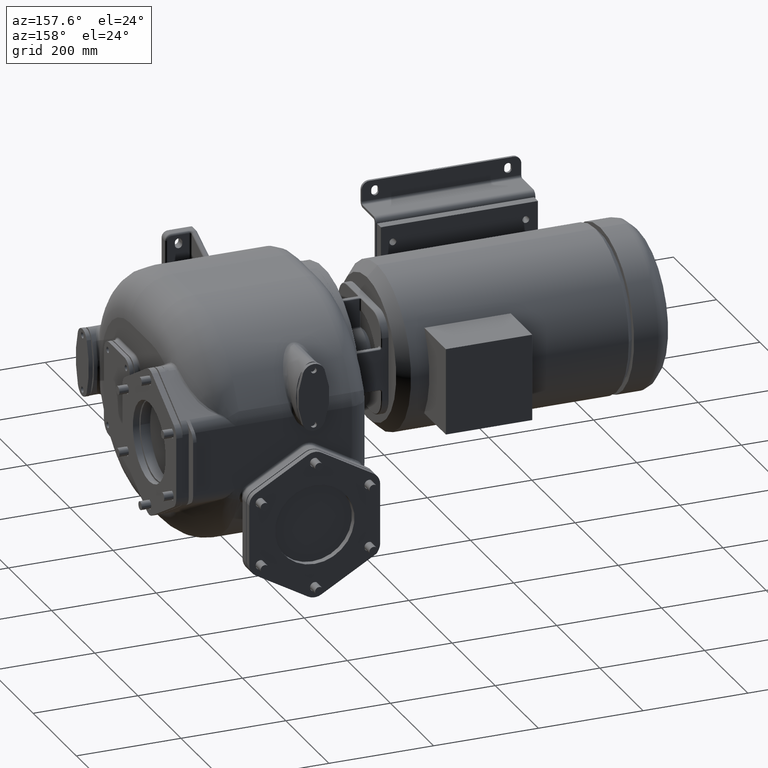
[diagram: clean part render]
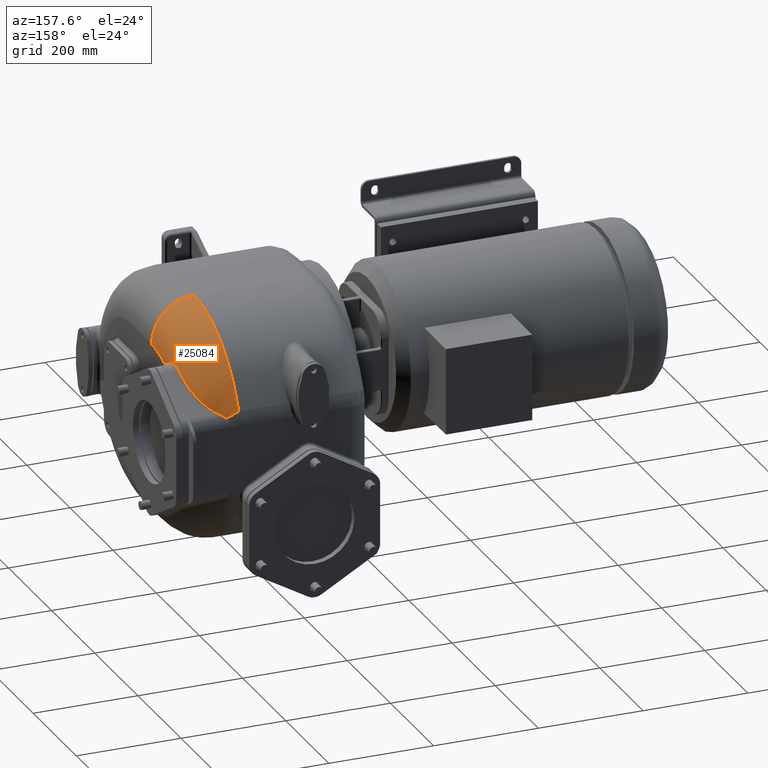
[diagram: same view with one face highlighted and labeled with its STEP entity id]
A machine part, auxiliary view. The second image highlights one B-rep face of the part: STEP entity #25084.
In plain terms, the highlighted toroidal blend (fillet) surface has major radius 144 mm and minor (blend) radius 81 mm.
Its self-contained STEP definition (entity closure, byte-faithful):
#6415=CARTESIAN_POINT('',(9.4E1,3.17E2,1.18E2));
#6416=DIRECTION('',(0.E0,-1.E0,0.E0));
#6417=DIRECTION('',(1.E0,0.E0,0.E0));
#6418=AXIS2_PLACEMENT_3D('',#6415,#6416,#6417);
#6447=CARTESIAN_POINT('',(1.75E2,3.17E2,-2.6E1));
#6448=DIRECTION('',(1.E0,0.E0,0.E0));
#6449=DIRECTION('',(0.E0,4.233478865562E-1,9.059671997089E-1));
#6450=AXIS2_PLACEMENT_3D('',#6447,#6448,#6449);
#6536=CARTESIAN_POINT('',(1.733602443618E2,3.951095980304E2,1.138856239345E2));
#6537=CARTESIAN_POINT('',(1.734661831703E2,3.945748210790E2,1.135904168496E2));
#6538=CARTESIAN_POINT('',(1.736684373138E2,3.934981751461E2,1.129963078726E2));
#6539=CARTESIAN_POINT('',(1.739421932198E2,3.918631475769E2,1.120947629351E2));
#6540=CARTESIAN_POINT('',(1.741859853625E2,3.902069024249E2,1.111822324884E2));
#6541=CARTESIAN_POINT('',(1.743992934731E2,3.885289490650E2,1.102584862345E2));
#6542=CARTESIAN_POINT('',(1.745815907162E2,3.868285633995E2,1.093231680484E2));
#6543=CARTESIAN_POINT('',(1.747322930105E2,3.851050428096E2,1.083759320387E2));
#6544=CARTESIAN_POINT('',(1.748507681541E2,3.833577111877E2,1.074164505472E2));
#6545=CARTESIAN_POINT('',(1.749363377425E2,3.815858736748E2,1.064443904438E2));
#6546=CARTESIAN_POINT('',(1.749882841836E2,3.797890831383E2,1.054595521580E2));
#6547=CARTESIAN_POINT('',(1.749999999614E2,3.785738109838E2,1.047940818377E2));
#6548=CARTESIAN_POINT('',(1.75E2,3.779620956640E2,1.044592767582E2));
#6550=CARTESIAN_POINT('',(9.4E1,5.250322073841E2,5.971814680035E1));
#6551=CARTESIAN_POINT('',(9.451538624218E1,5.251048634583E2,5.954179212118E1));
#6552=CARTESIAN_POINT('',(9.554646692356E1,5.252401754354E2,5.918632790116E1));
#6553=CARTESIAN_POINT('',(9.709182938497E1,5.254147461811E2,5.864074179071E1));
#6554=CARTESIAN_POINT('',(9.863597298219E1,5.255599646151E2,5.808526365770E1));
#6555=CARTESIAN_POINT('',(1.001779446747E2,5.256759942519E2,5.751965589582E1));
#6556=CARTESIAN_POINT('',(1.017171040288E2,5.257627269187E2,5.694442303393E1));
#6557=CARTESIAN_POINT('',(1.032525532321E2,5.258201765968E2,5.635987863800E1));
#6558=CARTESIAN_POINT('',(1.047830884059E2,5.258481819746E2,5.576700859384E1));
#6559=CARTESIAN_POINT('',(1.063075976812E2,5.258466444557E2,5.516680749646E1));
#6560=CARTESIAN_POINT('',(1.078258321734E2,5.258155406206E2,5.455983848298E1));
#6561=CARTESIAN_POINT('',(1.093376667183E2,5.257546956298E2,5.394694761771E1));
#6562=CARTESIAN_POINT('',(1.108423900968E2,5.256645611190E2,5.332766935970E1));
#6563=CARTESIAN_POINT('',(1.123396533526E2,5.255450973468E2,5.270258337734E1));
#6564=CARTESIAN_POINT('',(1.138290756521E2,5.253964296493E2,5.207213301583E1));
#6565=CARTESIAN_POINT('',(1.148168093524E2,5.252773112861E2,5.164931850497E1));
#6566=CARTESIAN_POINT('',(1.153092020854E2,5.252130023591E2,5.143707029860E1));
#6568=CARTESIAN_POINT('',(1.153092020854E2,5.252130023591E2,5.143707029860E1));
#6569=CARTESIAN_POINT('',(1.155752783039E2,5.251784614331E2,5.132191762786E1));
#6570=CARTESIAN_POINT('',(1.161045555584E2,5.251119110537E2,5.107849512312E1));
#6571=CARTESIAN_POINT('',(1.169050818362E2,5.249989935738E2,5.071528949109E1));
#6572=CARTESIAN_POINT('',(1.174385900906E2,5.249224782409E2,5.046131345931E1));
#6573=CARTESIAN_POINT('',(1.177053320788E2,5.248829311947E2,5.033237396614E1));
#6575=CARTESIAN_POINT('',(1.177053320788E2,5.248829311947E2,5.033237396614E1));
#6576=CARTESIAN_POINT('',(1.178732428866E2,5.247701163780E2,5.049051828112E1));
#6577=CARTESIAN_POINT('',(1.182242647067E2,5.245340196570E2,5.081454391319E1));
#6578=CARTESIAN_POINT('',(1.188023792175E2,5.241517501924E2,5.131760275101E1));
#6579=CARTESIAN_POINT('',(1.194318696018E2,5.237376531075E2,5.183759997580E1));
#6580=CARTESIAN_POINT('',(1.201149873190E2,5.232904908056E2,5.237245649807E1));
#6581=CARTESIAN_POINT('',(1.208524276767E2,5.228083115169E2,5.292090300096E1));
#6582=CARTESIAN_POINT('',(1.216452966631E2,5.222885914027E2,5.348267916300E1));
#6583=CARTESIAN_POINT('',(1.224909363805E2,5.217318213825E2,5.405281802069E1));
#6584=CARTESIAN_POINT('',(1.233830614639E2,5.211405956276E2,5.462497541390E1));
#6585=CARTESIAN_POINT('',(1.243154492884E2,5.205171210455E2,5.519441922427E1));
#6586=CARTESIAN_POINT('',(1.252812730714E2,5.198642360895E2,5.575630071473E1));
#6587=CARTESIAN_POINT('',(1.262760303137E2,5.191835858426E2,5.630701805651E1));
#6588=CARTESIAN_POINT('',(1.272955026788E2,5.184764686424E2,5.684404852444E1));
#6589=CARTESIAN_POINT('',(1.283351678255E2,5.177445796058E2,5.736488305970E1));
#6590=CARTESIAN_POINT('',(1.293912278218E2,5.169895195831E2,5.786696777144E1));
#6591=CARTESIAN_POINT('',(1.301023125656E2,5.164727864102E2,5.818726775048E1));
#6592=CARTESIAN_POINT('',(1.304597870853E2,5.162107940024E2,5.834389739409E1));
#6594=CARTESIAN_POINT('',(1.304597870853E2,5.162107940024E2,5.834389739409E1));
#6595=CARTESIAN_POINT('',(1.308283016295E2,5.159407059331E2,5.850536894922E1));
#6596=CARTESIAN_POINT('',(1.315642150403E2,5.153897724783E2,5.883475393211E1));
#6597=CARTESIAN_POINT('',(1.326637954900E2,5.145308861720E2,5.934825887950E1));
#6598=CARTESIAN_POINT('',(1.337587047405E2,5.136388807813E2,5.988155997731E1));
#6599=CARTESIAN_POINT('',(1.348483507133E2,5.127132555355E2,6.043495360784E1));
#6600=CARTESIAN_POINT('',(1.359321136266E2,5.117535199364E2,6.100874713436E1));
#6601=CARTESIAN_POINT('',(1.370094035195E2,5.107591494175E2,6.160326181807E1));
#6602=CARTESIAN_POINT('',(1.380796102414E2,5.097296427202E2,6.221878651551E1));
#6603=CARTESIAN_POINT('',(1.391426003592E2,5.086639981555E2,6.285591373867E1));
#6604=CARTESIAN_POINT('',(1.401982303652E2,5.075611236736E2,6.351529078704E1));
#6605=CARTESIAN_POINT('',(1.412462426984E2,5.064199476161E2,6.419755747338E1));
#6606=CARTESIAN_POINT('',(1.422863009285E2,5.052393988300E2,6.490334896912E1));
#6607=CARTESIAN_POINT('',(1.433179951672E2,5.040184047299E2,6.563329778393E1));
#6608=CARTESIAN_POINT('',(1.443408054838E2,5.027559531410E2,6.638799922744E1));
#6609=CARTESIAN_POINT('',(1.453545749741E2,5.014504803340E2,6.716837743280E1));
#6610=CARTESIAN_POINT('',(1.463590748438E2,5.001003592636E2,6.797539851184E1));
#6611=CARTESIAN_POINT('',(1.473540490077E2,4.987037873631E2,6.881013399717E1));
#6612=CARTESIAN_POINT('',(1.483365131420E2,4.972628667686E2,6.967131182164E1));
#6613=CARTESIAN_POINT('',(1.493036864590E2,4.957799645637E2,7.055749649184E1));
#6614=CARTESIAN_POINT('',(1.502529668378E2,4.942577065835E2,7.146708821720E1));
#6615=CARTESIAN_POINT('',(1.511818290068E2,4.926991663502E2,7.239823707930E1));
#6616=CARTESIAN_POINT('',(1.520879641075E2,4.911076757198E2,7.334894545888E1));
#6617=CARTESIAN_POINT('',(1.529697986159E2,4.894859261166E2,7.431758236330E1));
#6618=CARTESIAN_POINT('',(1.538280086349E2,4.878326851423E2,7.530485235943E1));
#6619=CARTESIAN_POINT('',(1.546629663818E2,4.861470616171E2,7.631123954906E1));
#6620=CARTESIAN_POINT('',(1.554748857430E2,4.844283106935E2,7.733717451816E1));
#6621=CARTESIAN_POINT('',(1.562634478545E2,4.826767780292E2,7.838243176601E1));
#6622=CARTESIAN_POINT('',(1.570284330664E2,4.808927120722E2,7.944682582862E1));
#6623=CARTESIAN_POINT('',(1.577697196762E2,4.790762176633E2,8.053023700155E1));
#6624=CARTESIAN_POINT('',(1.584873114316E2,4.772271169805E2,8.163271969177E1));
#6625=CARTESIAN_POINT('',(1.591812087082E2,4.753452009967E2,8.275437783511E1));
#6626=CARTESIAN_POINT('',(1.598513818561E2,4.734303803088E2,8.389521738088E1));
#6627=CARTESIAN_POINT('',(1.604977402127E2,4.714828202634E2,8.505506870540E1));
#6628=CARTESIAN_POINT('',(1.611202399770E2,4.695026220335E2,8.623380760554E1));
#6629=CARTESIAN_POINT('',(1.617188549622E2,4.674898717983E2,8.743134486178E1));
#6630=CARTESIAN_POINT('',(1.622935845406E2,4.654446932035E2,8.864753899424E1));
#6631=CARTESIAN_POINT('',(1.628444703469E2,4.633671804494E2,8.988224069540E1));
#6632=CARTESIAN_POINT('',(1.633715407120E2,4.612575112062E2,9.113528902173E1));
#6633=CARTESIAN_POINT('',(1.638748267371E2,4.591159958229E2,9.240643035445E1));
#6634=CARTESIAN_POINT('',(1.643544169358E2,4.569428933714E2,9.369540500654E1));
#6635=CARTESIAN_POINT('',(1.648103982405E2,4.547385455524E2,9.500193422612E1));
#6636=CARTESIAN_POINT('',(1.652428616013E2,4.525034276136E2,9.632566407635E1));
#6637=CARTESIAN_POINT('',(1.656519607571E2,4.502379294158E2,9.766624952839E1));
#6638=CARTESIAN_POINT('',(1.660378325322E2,4.479426663226E2,9.902322181088E1));
#6639=CARTESIAN_POINT('',(1.664006006541E2,4.456184746860E2,1.003960178415E2));
#6640=CARTESIAN_POINT('',(1.667404520389E2,4.432660929188E2,1.017840958972E2));
#6641=CARTESIAN_POINT('',(1.670575861691E2,4.408864462363E2,1.031867699467E2));
#6642=CARTESIAN_POINT('',(1.673521977991E2,4.384805423841E2,1.046033736834E2));
#6643=CARTESIAN_POINT('',(1.676245209994E2,4.360492764943E2,1.060332944390E2));
#6644=CARTESIAN_POINT('',(1.678747738084E2,4.335939467282E2,1.074756478331E2));
#6645=CARTESIAN_POINT('',(1.681031900672E2,4.311159727285E2,1.089294596846E2));
#6646=CARTESIAN_POINT('',(1.683099850036E2,4.286168274508E2,1.103938208181E2));
#6647=CARTESIAN_POINT('',(1.684954132525E2,4.260976355291E2,1.118679917646E2));
#6648=CARTESIAN_POINT('',(1.686049109876E2,4.244063694867E2,1.128563286E2));
#6649=CARTESIAN_POINT('',(1.686562078377E2,4.235573989122E2,1.133520893372E2));
#6651=CARTESIAN_POINT('',(1.686562078377E2,4.235573989122E2,1.133520893372E2));
#6652=CARTESIAN_POINT('',(1.686693154460E2,4.233404954678E2,1.134787426270E2));
#6653=CARTESIAN_POINT('',(1.686977436262E2,4.229031694896E2,1.137266584392E2));
#6654=CARTESIAN_POINT('',(1.687469383326E2,4.222366573934E2,1.140823387935E2));
#6655=CARTESIAN_POINT('',(1.688025731416E2,4.215602514598E2,1.144214513580E2));
#6656=CARTESIAN_POINT('',(1.688645379702E2,4.208744179909E2,1.147437023769E2));
#6657=CARTESIAN_POINT('',(1.689327175452E2,4.201796649217E2,1.150487612707E2));
#6658=CARTESIAN_POINT('',(1.690069938511E2,4.194764900510E2,1.153362884864E2));
#6659=CARTESIAN_POINT('',(1.690872435267E2,4.187653931923E2,1.156059350608E2));
#6660=CARTESIAN_POINT('',(1.691733448638E2,4.180468897177E2,1.158573108856E2));
#6661=CARTESIAN_POINT('',(1.692651287887E2,4.173214285010E2,1.160901936205E2));
#6662=CARTESIAN_POINT('',(1.693624394646E2,4.165892052208E2,1.163044726088E2));
#6663=CARTESIAN_POINT('',(1.694651209764E2,4.158504410013E2,1.164999868094E2));
#6664=CARTESIAN_POINT('',(1.695730187600E2,4.151053309245E2,1.166765563340E2));
#6665=CARTESIAN_POINT('',(1.696859644073E2,4.143541570292E2,1.168339491256E2));
#6666=CARTESIAN_POINT('',(1.698036966247E2,4.135977798971E2,1.169718067866E2));
#6667=CARTESIAN_POINT('',(1.699259353602E2,4.128370152923E2,1.170898536444E2));
#6668=CARTESIAN_POINT('',(1.700523710297E2,4.120727129082E2,1.171878800160E2));
#6669=CARTESIAN_POINT('',(1.701826924111E2,4.113056752034E2,1.172657116886E2));
#6670=CARTESIAN_POINT('',(1.703166145711E2,4.105364976196E2,1.173232190056E2));
#6671=CARTESIAN_POINT('',(1.704538417973E2,4.097658083105E2,1.173602766246E2));
#6672=CARTESIAN_POINT('',(1.705940746787E2,4.089942245597E2,1.173767711685E2));
#6673=CARTESIAN_POINT('',(1.707369933651E2,4.082223679381E2,1.173726503744E2));
#6674=CARTESIAN_POINT('',(1.708822570787E2,4.074509459473E2,1.173478800392E2));
#6675=CARTESIAN_POINT('',(1.710295216139E2,4.066806564864E2,1.173024499170E2));
#6676=CARTESIAN_POINT('',(1.711784410195E2,4.059121880827E2,1.172363692720E2));
#6677=CARTESIAN_POINT('',(1.713286560325E2,4.051462749580E2,1.171496780911E2));
#6678=CARTESIAN_POINT('',(1.714797783739E2,4.043837456929E2,1.170424869828E2));
#6679=CARTESIAN_POINT('',(1.716314239831E2,4.036254020877E2,1.169149374800E2));
#6680=CARTESIAN_POINT('',(1.717832076544E2,4.028720472830E2,1.167672084737E2));
#6681=CARTESIAN_POINT('',(1.719347530481E2,4.021244465919E2,1.165995050923E2));
#6682=CARTESIAN_POINT('',(1.720856965580E2,4.013832992488E2,1.164120596100E2));
#6683=CARTESIAN_POINT('',(1.722356797143E2,4.006492831167E2,1.162051363514E2));
#6684=CARTESIAN_POINT('',(1.723843496937E2,3.999230675560E2,1.159790260373E2));
#6685=CARTESIAN_POINT('',(1.725313673088E2,3.992052737340E2,1.157340371778E2));
#6686=CARTESIAN_POINT('',(1.726764120667E2,3.984964651942E2,1.154704751682E2));
#6687=CARTESIAN_POINT('',(1.728191555896E2,3.977972274320E2,1.151887209698E2));
#6688=CARTESIAN_POINT('',(1.729592743315E2,3.971081472090E2,1.148891963737E2));
#6689=CARTESIAN_POINT('',(1.730964576373E2,3.964298120905E2,1.145723331380E2));
#6690=CARTESIAN_POINT('',(1.732304239078E2,3.957627230460E2,1.142385323422E2));
#6691=CARTESIAN_POINT('',(1.733173751177E2,3.953260030725E2,1.140050795331E2));
#6692=CARTESIAN_POINT('',(1.733602443618E2,3.951095980304E2,1.138856239345E2));
#6862=CARTESIAN_POINT('',(9.4E1,3.17E2,-2.6E1));
#6863=DIRECTION('',(1.E0,0.E0,0.E0));
#6864=DIRECTION('',(0.E0,9.245875883739E-1,3.809695413349E-1));
#6865=AXIS2_PLACEMENT_3D('',#6862,#6863,#6864);
#16069=CARTESIAN_POINT('',(9.4E1,3.169999999999E2,1.99E2));
#16071=VERTEX_POINT('',#16069);
#16196=CARTESIAN_POINT('',(1.75E2,3.17E2,1.18E2));
#16197=VERTEX_POINT('',#16196);
#16243=CARTESIAN_POINT('',(9.4E1,5.250322073841E2,5.971814680035E1));
#16244=VERTEX_POINT('',#16243);
#16669=CARTESIAN_POINT('',(1.75E2,3.779620956640E2,1.044592767582E2));
#16670=VERTEX_POINT('',#16669);
#16673=VERTEX_POINT('',#6536);
#16675=VERTEX_POINT('',#6651);
#16677=VERTEX_POINT('',#6594);
#16679=VERTEX_POINT('',#6575);
#16758=VERTEX_POINT('',#6566);
#25062=CARTESIAN_POINT('',(9.4E1,3.17E2,-2.6E1));
#25063=DIRECTION('',(-1.E0,0.E0,0.E0));
#25064=DIRECTION('',(0.E0,9.274130518928E-1,3.740388097229E-1));
#25065=AXIS2_PLACEMENT_3D('',#25062,#25063,#25064);
#25066=TOROIDAL_SURFACE('',#25065,1.44E2,8.1E1);
#25067=ORIENTED_EDGE('',*,*,#25052,.T.);
#25068=ORIENTED_EDGE('',*,*,#24917,.T.);
#25069=ORIENTED_EDGE('',*,*,#24898,.T.);
#25071=ORIENTED_EDGE('',*,*,#25070,.F.);
#25073=ORIENTED_EDGE('',*,*,#25072,.T.);
#25075=ORIENTED_EDGE('',*,*,#25074,.T.);
#25077=ORIENTED_EDGE('',*,*,#25076,.T.);
#25079=ORIENTED_EDGE('',*,*,#25078,.T.);
#25081=ORIENTED_EDGE('',*,*,#25080,.T.);
#25082=EDGE_LOOP('',(#25067,#25068,#25069,#25071,#25073,#25075,#25077,#25079,
#25081));
#25083=FACE_OUTER_BOUND('',#25082,.F.);
#25084=ADVANCED_FACE('',(#25083),#25066,.T.);
#6419=CIRCLE('',#6418,8.1E1);
#6451=CIRCLE('',#6450,1.44E2);
#6549=B_SPLINE_CURVE_WITH_KNOTS('',3,(#6536,#6537,#6538,#6539,#6540,#6541,#6542,
#6543,#6544,#6545,#6546,#6547,#6548),.UNSPECIFIED.,.F.,.F.,(4,1,1,1,1,1,1,1,1,1,
4),(0.E0,1.E-1,2.E-1,3.E-1,4.E-1,5.E-1,6.E-1,7.E-1,8.E-1,9.E-1,1.E0),
.UNSPECIFIED.);
#6567=B_SPLINE_CURVE_WITH_KNOTS('',3,(#6550,#6551,#6552,#6553,#6554,#6555,#6556,
#6557,#6558,#6559,#6560,#6561,#6562,#6563,#6564,#6565,#6566),.UNSPECIFIED.,.F.,
.F.,(4,1,1,1,1,1,1,1,1,1,1,1,1,1,4),(0.E0,7.142857142857E-2,1.428571428571E-1,
2.142857142857E-1,2.857142857143E-1,3.571428571429E-1,4.285714285714E-1,5.E-1,
5.714285714286E-1,6.428571428571E-1,7.142857142857E-1,7.857142857143E-1,
8.571428571429E-1,9.285714285714E-1,1.E0),.UNSPECIFIED.);
#6574=B_SPLINE_CURVE_WITH_KNOTS('',3,(#6568,#6569,#6570,#6571,#6572,#6573),
.UNSPECIFIED.,.F.,.F.,(4,1,1,4),(0.E0,3.333333333333E-1,6.666666666667E-1,1.E0),
.UNSPECIFIED.);
#6593=B_SPLINE_CURVE_WITH_KNOTS('',3,(#6575,#6576,#6577,#6578,#6579,#6580,#6581,
#6582,#6583,#6584,#6585,#6586,#6587,#6588,#6589,#6590,#6591,#6592),
.UNSPECIFIED.,.F.,.F.,(4,1,1,1,1,1,1,1,1,1,1,1,1,1,1,4),(0.E0,6.666666666667E-2,
1.333333333333E-1,2.E-1,2.666666666667E-1,3.333333333333E-1,4.E-1,
4.666666666667E-1,5.333333333333E-1,6.E-1,6.666666666667E-1,7.333333333333E-1,
8.E-1,8.666666666667E-1,9.333333333333E-1,1.E0),.UNSPECIFIED.);
#6650=B_SPLINE_CURVE_WITH_KNOTS('',3,(#6594,#6595,#6596,#6597,#6598,#6599,#6600,
#6601,#6602,#6603,#6604,#6605,#6606,#6607,#6608,#6609,#6610,#6611,#6612,#6613,
#6614,#6615,#6616,#6617,#6618,#6619,#6620,#6621,#6622,#6623,#6624,#6625,#6626,
#6627,#6628,#6629,#6630,#6631,#6632,#6633,#6634,#6635,#6636,#6637,#6638,#6639,
#6640,#6641,#6642,#6643,#6644,#6645,#6646,#6647,#6648,#6649),.UNSPECIFIED.,.F.,
.F.,(4,1,1,1,1,1,1,1,1,1,1,1,1,1,1,1,1,1,1,1,1,1,1,1,1,1,1,1,1,1,1,1,1,1,1,1,1,
1,1,1,1,1,1,1,1,1,1,1,1,1,1,1,1,4),(0.E0,1.886792452830E-2,3.773584905660E-2,
5.660377358491E-2,7.547169811321E-2,9.433962264151E-2,1.132075471698E-1,
1.320754716981E-1,1.509433962264E-1,1.698113207547E-1,1.886792452830E-1,
2.075471698113E-1,2.264150943396E-1,2.452830188679E-1,2.641509433962E-1,
2.830188679245E-1,3.018867924528E-1,3.207547169811E-1,3.396226415094E-1,
3.584905660377E-1,3.773584905660E-1,3.962264150943E-1,4.150943396226E-1,
4.339622641509E-1,4.528301886792E-1,4.716981132075E-1,4.905660377358E-1,
5.094339622642E-1,5.283018867925E-1,5.471698113208E-1,5.660377358491E-1,
5.849056603774E-1,6.037735849057E-1,6.226415094340E-1,6.415094339623E-1,
6.603773584906E-1,6.792452830189E-1,6.981132075472E-1,7.169811320755E-1,
7.358490566038E-1,7.547169811321E-1,7.735849056604E-1,7.924528301887E-1,
8.113207547170E-1,8.301886792453E-1,8.490566037736E-1,8.679245283019E-1,
8.867924528302E-1,9.056603773585E-1,9.245283018868E-1,9.433962264151E-1,
9.622641509434E-1,9.811320754717E-1,1.E0),.UNSPECIFIED.);
#6693=B_SPLINE_CURVE_WITH_KNOTS('',3,(#6651,#6652,#6653,#6654,#6655,#6656,#6657,
#6658,#6659,#6660,#6661,#6662,#6663,#6664,#6665,#6666,#6667,#6668,#6669,#6670,
#6671,#6672,#6673,#6674,#6675,#6676,#6677,#6678,#6679,#6680,#6681,#6682,#6683,
#6684,#6685,#6686,#6687,#6688,#6689,#6690,#6691,#6692),.UNSPECIFIED.,.F.,.F.,(4,
1,1,1,1,1,1,1,1,1,1,1,1,1,1,1,1,1,1,1,1,1,1,1,1,1,1,1,1,1,1,1,1,1,1,1,1,1,1,4),(
0.E0,2.564102564103E-2,5.128205128205E-2,7.692307692308E-2,1.025641025641E-1,
1.282051282051E-1,1.538461538462E-1,1.794871794872E-1,2.051282051282E-1,
2.307692307692E-1,2.564102564103E-1,2.820512820513E-1,3.076923076923E-1,
3.333333333333E-1,3.589743589744E-1,3.846153846154E-1,4.102564102564E-1,
4.358974358974E-1,4.615384615385E-1,4.871794871795E-1,5.128205128205E-1,
5.384615384615E-1,5.641025641026E-1,5.897435897436E-1,6.153846153846E-1,
6.410256410256E-1,6.666666666667E-1,6.923076923077E-1,7.179487179487E-1,
7.435897435897E-1,7.692307692308E-1,7.948717948718E-1,8.205128205128E-1,
8.461538461538E-1,8.717948717949E-1,8.974358974359E-1,9.230769230769E-1,
9.487179487179E-1,9.743589743590E-1,1.E0),.UNSPECIFIED.);
#6866=CIRCLE('',#6865,2.25E2);
#24898=EDGE_CURVE('',#16197,#16071,#6419,.T.);
#24917=EDGE_CURVE('',#16670,#16197,#6451,.T.);
#25052=EDGE_CURVE('',#16673,#16670,#6549,.T.);
#25070=EDGE_CURVE('',#16244,#16071,#6866,.T.);
#25072=EDGE_CURVE('',#16244,#16758,#6567,.T.);
#25074=EDGE_CURVE('',#16758,#16679,#6574,.T.);
#25076=EDGE_CURVE('',#16679,#16677,#6593,.T.);
#25078=EDGE_CURVE('',#16677,#16675,#6650,.T.);
#25080=EDGE_CURVE('',#16675,#16673,#6693,.T.);